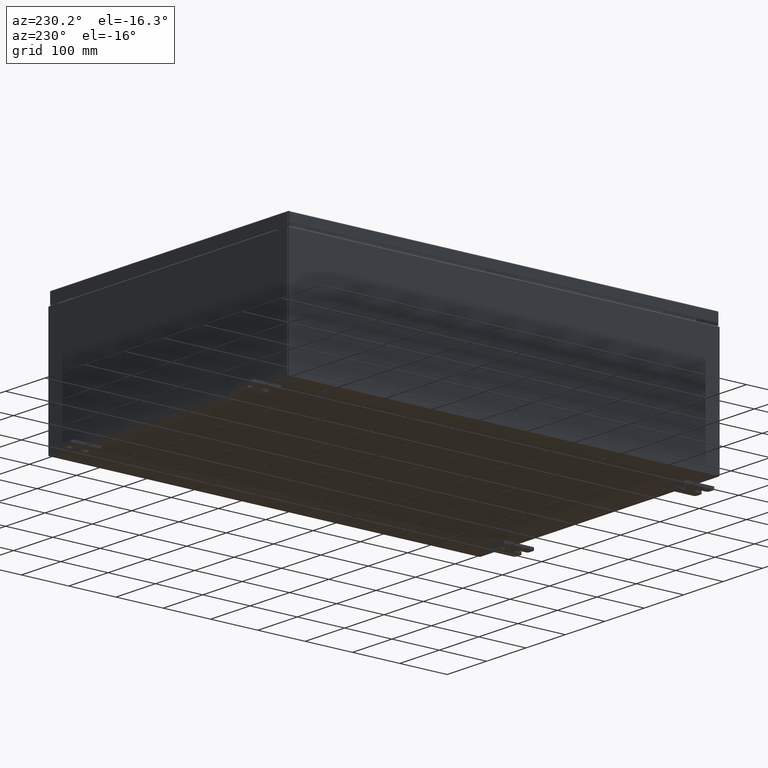
[diagram: clean part render]
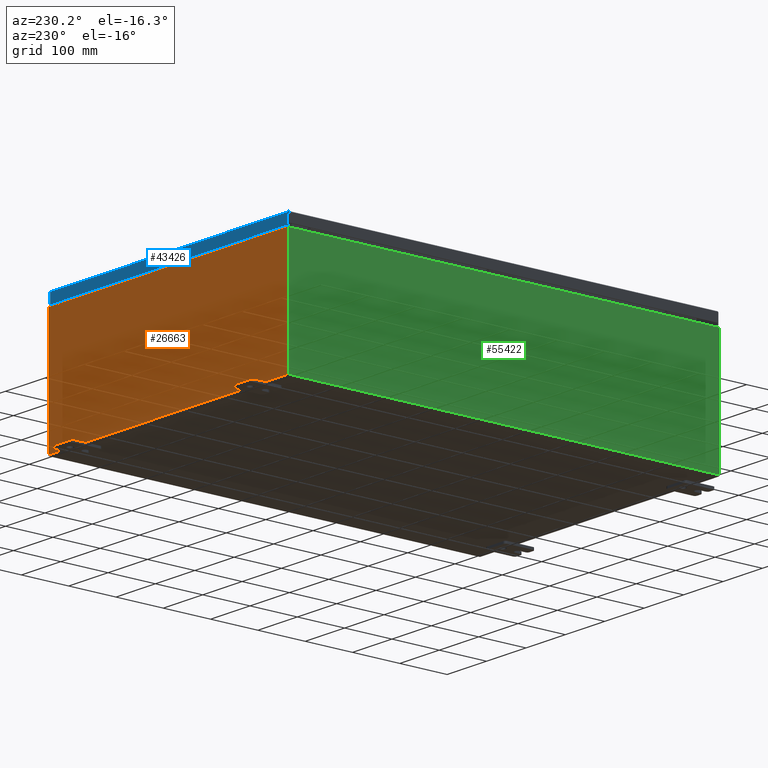
[diagram: same view with three faces highlighted in distinct colors, each labeled with its STEP entity id]
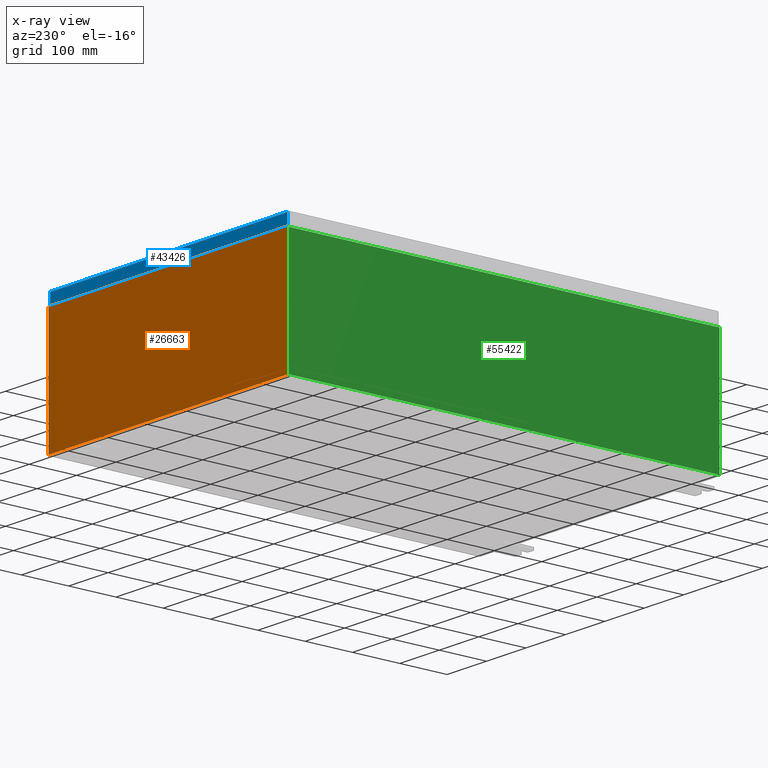
[diagram: x-ray of the same camera — body ghosted, the three highlighted faces saturated]
A machine part, auxiliary view with three faces highlighted in distinct colors.
The next image is the same camera in x-ray (body ghosted, the three faces saturated) — at least one of them is partly hidden behind the body in this view.
Their STEP definitions:

[orange] entity #26663 — the highlighted planar face has unit normal (0, -1, 0).
#643 = LINE ( 'NONE', #61521, #37170 ) ;
#804 = CARTESIAN_POINT ( 'NONE',  ( -11.92530000000000000, 0.0000000000000000000, 4.925300000000000000 ) ) ;
#937 = ORIENTED_EDGE ( 'NONE', *, *, #43869, .T. ) ;
#988 = CARTESIAN_POINT ( 'NONE',  ( -10.88720000000000200, -7.171100983368691200E-016, 4.912300000000000100 ) ) ;
#1495 = ORIENTED_EDGE ( 'NONE', *, *, #5403, .F. ) ;
#1532 = LINE ( 'NONE', #51740, #26447 ) ;
#3469 = VERTEX_POINT ( 'NONE', #804 ) ;
#3608 = DIRECTION ( 'NONE',  ( 0.0000000000000000000, 0.0000000000000000000, 1.000000000000000000 ) ) ;
#4804 = VECTOR ( 'NONE', #45741, 39.37007874015748100 ) ;
#5403 = EDGE_CURVE ( 'NONE', #58730, #34831, #19266, .T. ) ;
#5708 = EDGE_CURVE ( 'NONE', #34746, #40833, #47907, .T. ) ;
#5967 = EDGE_CURVE ( 'NONE', #11919, #45245, #58901, .T. ) ;
#6138 = CARTESIAN_POINT ( 'NONE',  ( -10.90587500000000000, 0.0000000000000000000, 4.874950000000000100 ) ) ;
#6478 = EDGE_CURVE ( 'NONE', #28155, #34746, #28559, .T. ) ;
#6516 = LINE ( 'NONE', #8776, #57712 ) ;
#8591 = DIRECTION ( 'NONE',  ( 1.000000000000000000, 0.0000000000000000000, 0.0000000000000000000 ) ) ;
#8776 = CARTESIAN_POINT ( 'NONE',  ( -11.92530000000000000, 0.0000000000000000000, -4.925300000000000000 ) ) ;
#10311 = VECTOR ( 'NONE', #23581, 39.37007874015748100 ) ;
#11845 = LINE ( 'NONE', #43064, #10311 ) ;
#11919 = VERTEX_POINT ( 'NONE', #27016 ) ;
#12730 = EDGE_CURVE ( 'NONE', #3469, #24196, #49852, .T. ) ;
#12770 = EDGE_CURVE ( 'NONE', #40833, #24196, #11845, .T. ) ;
#13100 = FACE_OUTER_BOUND ( 'NONE', #49061, .T. ) ;
#13371 = CARTESIAN_POINT ( 'NONE',  ( 10.88720000000000200, 0.0000000000000000000, 4.874950000000000100 ) ) ;
#13970 = ORIENTED_EDGE ( 'NONE', *, *, #48177, .T. ) ;
#14057 = CARTESIAN_POINT ( 'NONE',  ( 10.88720000000000200, 0.0000000000000000000, 0.0000000000000000000 ) ) ;
#15299 = CARTESIAN_POINT ( 'NONE',  ( 11.92530000000000000, 0.0000000000000000000, -4.925300000000000000 ) ) ;
#17178 = CARTESIAN_POINT ( 'NONE',  ( -10.88720000000000000, -0.0000000000000000000, 0.0000000000000000000 ) ) ;
#17534 = PLANE ( 'NONE',  #26884 ) ;
#19266 = LINE ( 'NONE', #14057, #45614 ) ;
#22476 = CARTESIAN_POINT ( 'NONE',  ( 11.92530000000000000, 0.0000000000000000000, 4.925300000000000000 ) ) ;
#22737 = CARTESIAN_POINT ( 'NONE',  ( 0.0000000000000000000, 0.0000000000000000000, 0.0000000000000000000 ) ) ;
#23018 = CARTESIAN_POINT ( 'NONE',  ( -10.88720000000000000, -0.0000000000000000000, 4.874950000000000100 ) ) ;
#23094 = AXIS2_PLACEMENT_3D ( 'NONE', #58516, #28783, #63630 ) ;
#23581 = DIRECTION ( 'NONE',  ( 0.0000000000000000000, 0.0000000000000000000, 1.000000000000000000 ) ) ;
#23765 = DIRECTION ( 'NONE',  ( -1.000000000000000000, -0.0000000000000000000, -0.0000000000000000000 ) ) ;
#23907 = CARTESIAN_POINT ( 'NONE',  ( 10.92454999999978900, -0.0000000000000000000, -4.741880436811796300E-013 ) ) ;
#24196 = VERTEX_POINT ( 'NONE', #45517 ) ;
#24369 = EDGE_CURVE ( 'NONE', #45245, #58730, #44217, .T. ) ;
#24477 = DIRECTION ( 'NONE',  ( -4.340572780400004900E-014, 0.0000000000000000000, -1.000000000000000000 ) ) ;
#25074 = LINE ( 'NONE', #33917, #38228 ) ;
#26447 = VECTOR ( 'NONE', #37032, 39.37007874015748100 ) ;
#26663 = ADVANCED_FACE ( 'NONE', ( #13100 ), #17534, .F. ) ;
#26884 = AXIS2_PLACEMENT_3D ( 'NONE', #22737, #62512, #32698 ) ;
#27016 = CARTESIAN_POINT ( 'NONE',  ( 10.92455000000000000, 0.0000000000000000000, 4.925300000000000000 ) ) ;
#27198 = ORIENTED_EDGE ( 'NONE', *, *, #12730, .T. ) ;
#28155 = VERTEX_POINT ( 'NONE', #45674 ) ;
#28314 = CARTESIAN_POINT ( 'NONE',  ( -11.92530000000000000, 0.0000000000000000000, 4.925300000000000000 ) ) ;
#28537 = ORIENTED_EDGE ( 'NONE', *, *, #6478, .F. ) ;
#28559 = LINE ( 'NONE', #17178, #40224 ) ;
#28783 = DIRECTION ( 'NONE',  ( -0.0000000000000000000, 1.000000000000000000, -0.0000000000000000000 ) ) ;
#29450 = CARTESIAN_POINT ( 'NONE',  ( -10.92454999999999800, 0.0000000000000000000, 4.874950000000000100 ) ) ;
#30101 = ORIENTED_EDGE ( 'NONE', *, *, #61060, .T. ) ;
#32686 = ORIENTED_EDGE ( 'NONE', *, *, #24369, .F. ) ;
#32698 = DIRECTION ( 'NONE',  ( 0.0000000000000000000, -0.0000000000000000000, -1.000000000000000000 ) ) ;
#33917 = CARTESIAN_POINT ( 'NONE',  ( -11.92530000000000000, 0.0000000000000000000, 4.925300000000000000 ) ) ;
#34746 = VERTEX_POINT ( 'NONE', #23018 ) ;
#34831 = VERTEX_POINT ( 'NONE', #48798 ) ;
#34836 = ORIENTED_EDGE ( 'NONE', *, *, #58836, .T. ) ;
#36668 = VECTOR ( 'NONE', #8591, 39.37007874015748100 ) ;
#36736 = DIRECTION ( 'NONE',  ( 1.000000000000000000, 0.0000000000000000000, 0.0000000000000000000 ) ) ;
#37032 = DIRECTION ( 'NONE',  ( 0.0000000000000000000, 0.0000000000000000000, -1.000000000000000000 ) ) ;
#37170 = VECTOR ( 'NONE', #36736, 39.37007874015748100 ) ;
#37479 = DIRECTION ( 'NONE',  ( 0.0000000000000000000, 0.0000000000000000000, -1.000000000000000000 ) ) ;
#38228 = VECTOR ( 'NONE', #63752, 39.37007874015748100 ) ;
#40224 = VECTOR ( 'NONE', #49876, 39.37007874015748100 ) ;
#40833 = VERTEX_POINT ( 'NONE', #29450 ) ;
#41320 = AXIS2_PLACEMENT_3D ( 'NONE', #6138, #45096, #37479 ) ;
#42817 = LINE ( 'NONE', #988, #4804 ) ;
#43064 = CARTESIAN_POINT ( 'NONE',  ( -10.92454999999999800, -0.0000000000000000000, 0.0000000000000000000 ) ) ;
#43869 = EDGE_CURVE ( 'NONE', #47164, #45237, #6516, .T. ) ;
#44124 = VECTOR ( 'NONE', #24477, 39.37007874015748100 ) ;
#44217 = CIRCLE ( 'NONE', #23094, 0.01867499999999949400 ) ;
#45096 = DIRECTION ( 'NONE',  ( -0.0000000000000000000, 1.000000000000000000, -0.0000000000000000000 ) ) ;
#45237 = VERTEX_POINT ( 'NONE', #62707 ) ;
#45245 = VERTEX_POINT ( 'NONE', #52379 ) ;
#45517 = CARTESIAN_POINT ( 'NONE',  ( -10.92454999999999800, 0.0000000000000000000, 4.925300000000000000 ) ) ;
#45614 = VECTOR ( 'NONE', #3608, 39.37007874015748100 ) ;
#45674 = CARTESIAN_POINT ( 'NONE',  ( -10.88720000000000000, -7.171100983368691200E-016, 4.912300000000000100 ) ) ;
#45741 = DIRECTION ( 'NONE',  ( 1.000000000000000000, 0.0000000000000000000, 0.0000000000000000000 ) ) ;
#46046 = ORIENTED_EDGE ( 'NONE', *, *, #64194, .T. ) ;
#47164 = VERTEX_POINT ( 'NONE', #15299 ) ;
#47907 = CIRCLE ( 'NONE', #41320, 0.01867499999999949400 ) ;
#48177 = EDGE_CURVE ( 'NONE', #48841, #47164, #1532, .T. ) ;
#48608 = ORIENTED_EDGE ( 'NONE', *, *, #5708, .F. ) ;
#48798 = CARTESIAN_POINT ( 'NONE',  ( 10.88720000000000200, 0.0000000000000000000, 4.912300000000000100 ) ) ;
#48841 = VERTEX_POINT ( 'NONE', #22476 ) ;
#49061 = EDGE_LOOP ( 'NONE', ( #57235, #48608, #28537, #30101, #1495, #32686, #60934, #46046, #13970, #937, #34836, #27198 ) ) ;
#49852 = LINE ( 'NONE', #28314, #36668 ) ;
#49876 = DIRECTION ( 'NONE',  ( 0.0000000000000000000, 0.0000000000000000000, -1.000000000000000000 ) ) ;
#51740 = CARTESIAN_POINT ( 'NONE',  ( 11.92530000000000000, 0.0000000000000000000, 4.925300000000000000 ) ) ;
#52379 = CARTESIAN_POINT ( 'NONE',  ( 10.92455000000000000, 0.0000000000000000000, 4.874950000000000100 ) ) ;
#57235 = ORIENTED_EDGE ( 'NONE', *, *, #12770, .F. ) ;
#57712 = VECTOR ( 'NONE', #23765, 39.37007874015748100 ) ;
#58516 = CARTESIAN_POINT ( 'NONE',  ( 10.90587500000000200, 0.0000000000000000000, 4.874950000000000100 ) ) ;
#58730 = VERTEX_POINT ( 'NONE', #13371 ) ;
#58836 = EDGE_CURVE ( 'NONE', #45237, #3469, #25074, .T. ) ;
#58901 = LINE ( 'NONE', #23907, #44124 ) ;
#60934 = ORIENTED_EDGE ( 'NONE', *, *, #5967, .F. ) ;
#61060 = EDGE_CURVE ( 'NONE', #28155, #34831, #42817, .T. ) ;
#61521 = CARTESIAN_POINT ( 'NONE',  ( -11.92530000000000000, 0.0000000000000000000, 4.925300000000000000 ) ) ;
#62512 = DIRECTION ( 'NONE',  ( 0.0000000000000000000, -1.000000000000000000, 0.0000000000000000000 ) ) ;
#62707 = CARTESIAN_POINT ( 'NONE',  ( -11.92530000000000000, 0.0000000000000000000, -4.925300000000000000 ) ) ;
#63630 = DIRECTION ( 'NONE',  ( 0.0000000000000000000, 0.0000000000000000000, -1.000000000000000000 ) ) ;
#63752 = DIRECTION ( 'NONE',  ( -0.0000000000000000000, -0.0000000000000000000, 1.000000000000000000 ) ) ;
#64194 = EDGE_CURVE ( 'NONE', #11919, #48841, #643, .T. ) ;

[blue] entity #43426 — the highlighted planar face has unit normal (0, -1, -0).
#131 = EDGE_CURVE ( 'NONE', #1646, #12207, #35075, .T. ) ;
#1646 = VERTEX_POINT ( 'NONE', #56147 ) ;
#2414 = AXIS2_PLACEMENT_3D ( 'NONE', #54170, #49390, #19722 ) ;
#2812 = ORIENTED_EDGE ( 'NONE', *, *, #11206, .T. ) ;
#4509 = ORIENTED_EDGE ( 'NONE', *, *, #62026, .F. ) ;
#11206 = EDGE_CURVE ( 'NONE', #1646, #24569, #40648, .T. ) ;
#11684 = CARTESIAN_POINT ( 'NONE',  ( -11.93750000000000000, 17.93750000000000700, -0.9377000000000028600 ) ) ;
#11928 = DIRECTION ( 'NONE',  ( 0.0000000000000000000, 2.532419924601857400E-015, -1.000000000000000000 ) ) ;
#12207 = VERTEX_POINT ( 'NONE', #58425 ) ;
#12450 = ORIENTED_EDGE ( 'NONE', *, *, #44914, .F. ) ;
#15707 = DIRECTION ( 'NONE',  ( -1.000000000000000000, -8.693008950959990500E-032, -9.153836209136798400E-017 ) ) ;
#16664 = DIRECTION ( 'NONE',  ( 1.000000000000000000, -4.379057701015054300E-047, 1.258652478756310100E-016 ) ) ;
#16687 = CARTESIAN_POINT ( 'NONE',  ( 11.84865786437626900, 17.93750000000000400, 4.568609605355740300E-014 ) ) ;
#19722 = DIRECTION ( 'NONE',  ( 0.0000000000000000000, 2.532419924601857400E-015, -1.000000000000000000 ) ) ;
#24500 = PLANE ( 'NONE',  #2414 ) ;
#24569 = VERTEX_POINT ( 'NONE', #25144 ) ;
#24805 = CARTESIAN_POINT ( 'NONE',  ( -11.93750000000000000, 17.93750000000000400, -0.08770000000000008300 ) ) ;
#25114 = LINE ( 'NONE', #11684, #36707 ) ;
#25144 = CARTESIAN_POINT ( 'NONE',  ( 11.84865786437626800, 17.93750000000000700, -0.9376999999999997600 ) ) ;
#27449 = VECTOR ( 'NONE', #11928, 39.37007874015748100 ) ;
#35075 = LINE ( 'NONE', #24805, #36605 ) ;
#36589 = FACE_OUTER_BOUND ( 'NONE', #60854, .T. ) ;
#36605 = VECTOR ( 'NONE', #15707, 39.37007874015748100 ) ;
#36707 = VECTOR ( 'NONE', #16664, 39.37007874015748100 ) ;
#40648 = LINE ( 'NONE', #16687, #27449 ) ;
#42759 = LINE ( 'NONE', #56612, #54409 ) ;
#43426 = ADVANCED_FACE ( 'NONE', ( #36589 ), #24500, .F. ) ;
#44914 = EDGE_CURVE ( 'NONE', #62126, #24569, #25114, .T. ) ;
#49390 = DIRECTION ( 'NONE',  ( 3.187436615351995300E-031, -1.000000000000000000, -2.532419924601857400E-015 ) ) ;
#52905 = CARTESIAN_POINT ( 'NONE',  ( -11.84865786437626900, 17.93750000000000700, -0.9377000000000028600 ) ) ;
#54170 = CARTESIAN_POINT ( 'NONE',  ( -5.717464428787642800E-030, 17.93750000000000400, 4.568609605355740300E-014 ) ) ;
#54409 = VECTOR ( 'NONE', #61915, 39.37007874015748100 ) ;
#56147 = CARTESIAN_POINT ( 'NONE',  ( 11.84865786437626800, 17.93750000000000400, -0.08769999999999789100 ) ) ;
#56612 = CARTESIAN_POINT ( 'NONE',  ( -11.84865786437626900, 17.93750000000000400, -0.07469999999999980800 ) ) ;
#58425 = CARTESIAN_POINT ( 'NONE',  ( -11.84865786437626800, 17.93750000000000400, -0.08769999999999898700 ) ) ;
#60854 = EDGE_LOOP ( 'NONE', ( #62069, #2812, #12450, #4509 ) ) ;
#61915 = DIRECTION ( 'NONE',  ( -0.0000000000000000000, 2.532419924601857400E-015, -1.000000000000000000 ) ) ;
#62026 = EDGE_CURVE ( 'NONE', #12207, #62126, #42759, .T. ) ;
#62069 = ORIENTED_EDGE ( 'NONE', *, *, #131, .F. ) ;
#62126 = VERTEX_POINT ( 'NONE', #52905 ) ;

[green] entity #55422 — the highlighted planar face has unit normal (1, 0, 0).
#1934 = CARTESIAN_POINT ( 'NONE',  ( -12.00000000000003600, -17.92530000000000400, 9.837599999999998300 ) ) ;
#3894 = LINE ( 'NONE', #24417, #55130 ) ;
#6948 = CARTESIAN_POINT ( 'NONE',  ( -12.00000000000000200, 17.92529999999999600, 0.01299999999999984300 ) ) ;
#9546 = AXIS2_PLACEMENT_3D ( 'NONE', #28791, #48752, #19090 ) ;
#10551 = CARTESIAN_POINT ( 'NONE',  ( -12.00000000000000200, -17.92530000000000400, -4.253780798634223500E-014 ) ) ;
#12424 = DIRECTION ( 'NONE',  ( 0.0000000000000000000, 1.000000000000000000, 0.0000000000000000000 ) ) ;
#14111 = PLANE ( 'NONE',  #9546 ) ;
#15786 = CARTESIAN_POINT ( 'NONE',  ( -12.00000000000003600, -17.92530000000000400, 9.837599999999998300 ) ) ;
#16590 = VERTEX_POINT ( 'NONE', #6948 ) ;
#17111 = VECTOR ( 'NONE', #29576, 39.37007874015748100 ) ;
#19090 = DIRECTION ( 'NONE',  ( 3.523082860860887800E-015, 0.0000000000000000000, -1.000000000000000000 ) ) ;
#24417 = CARTESIAN_POINT ( 'NONE',  ( -12.00000000000000200, 17.92529999999999600, -4.253780798634223500E-014 ) ) ;
#24807 = EDGE_CURVE ( 'NONE', #55648, #37819, #38004, .T. ) ;
#27097 = CARTESIAN_POINT ( 'NONE',  ( -12.00000000000000200, -17.92530000000000400, 0.01299999999999984700 ) ) ;
#27427 = ORIENTED_EDGE ( 'NONE', *, *, #50123, .T. ) ;
#28791 = CARTESIAN_POINT ( 'NONE',  ( -12.00000000000000200, 0.0000000000000000000, -4.253780798634223500E-014 ) ) ;
#29576 = DIRECTION ( 'NONE',  ( -0.0000000000000000000, 1.000000000000000000, -0.0000000000000000000 ) ) ;
#29781 = CARTESIAN_POINT ( 'NONE',  ( -12.00000000000000200, 17.92529999999999600, 0.01299999999999984700 ) ) ;
#33510 = ORIENTED_EDGE ( 'NONE', *, *, #24807, .T. ) ;
#35326 = FACE_OUTER_BOUND ( 'NONE', #47097, .T. ) ;
#37819 = VERTEX_POINT ( 'NONE', #56380 ) ;
#38004 = LINE ( 'NONE', #1934, #58163 ) ;
#40244 = DIRECTION ( 'NONE',  ( -3.523082860860888200E-015, 0.0000000000000000000, 1.000000000000000000 ) ) ;
#41350 = ORIENTED_EDGE ( 'NONE', *, *, #53353, .T. ) ;
#42283 = VECTOR ( 'NONE', #40244, 39.37007874015748100 ) ;
#43117 = ORIENTED_EDGE ( 'NONE', *, *, #50244, .F. ) ;
#47097 = EDGE_LOOP ( 'NONE', ( #33510, #27427, #43117, #41350 ) ) ;
#48752 = DIRECTION ( 'NONE',  ( 1.000000000000000000, 0.0000000000000000000, 3.523082860860887800E-015 ) ) ;
#50123 = EDGE_CURVE ( 'NONE', #37819, #16590, #3894, .T. ) ;
#50244 = EDGE_CURVE ( 'NONE', #55060, #16590, #51972, .T. ) ;
#51972 = LINE ( 'NONE', #29781, #17111 ) ;
#53353 = EDGE_CURVE ( 'NONE', #55060, #55648, #55499, .T. ) ;
#54087 = DIRECTION ( 'NONE',  ( 3.523082860860888200E-015, 0.0000000000000000000, -1.000000000000000000 ) ) ;
#55060 = VERTEX_POINT ( 'NONE', #27097 ) ;
#55130 = VECTOR ( 'NONE', #54087, 39.37007874015748100 ) ;
#55422 = ADVANCED_FACE ( 'NONE', ( #35326 ), #14111, .F. ) ;
#55499 = LINE ( 'NONE', #10551, #42283 ) ;
#55648 = VERTEX_POINT ( 'NONE', #15786 ) ;
#56380 = CARTESIAN_POINT ( 'NONE',  ( -12.00000000000003600, 17.92529999999999600, 9.837599999999998300 ) ) ;
#58163 = VECTOR ( 'NONE', #12424, 39.37007874015748100 ) ;